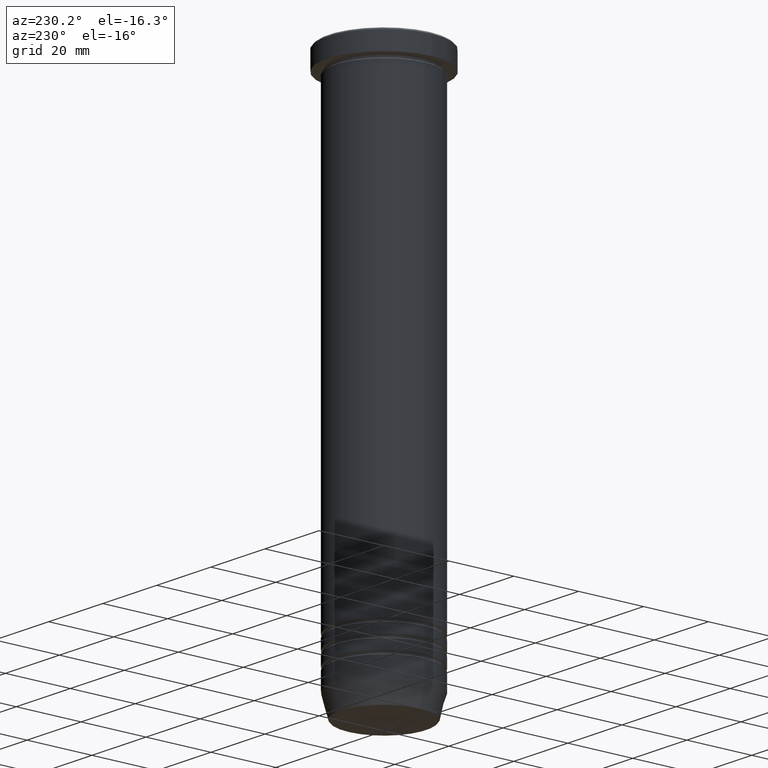
[diagram: clean part render]
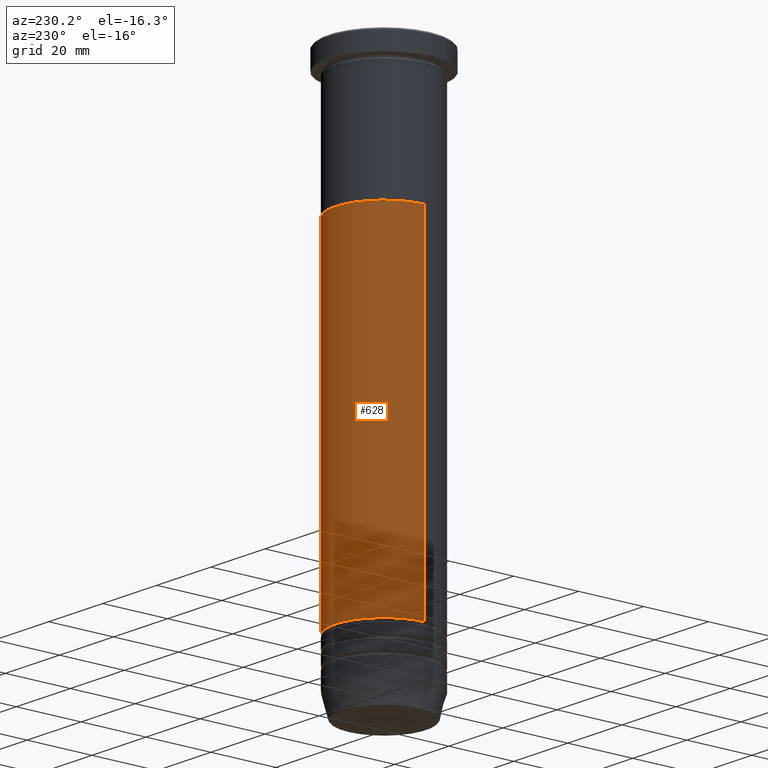
[diagram: same view with one face highlighted and labeled with its STEP entity id]
A machine part, auxiliary view. The second image highlights one B-rep face of the part: STEP entity #628.
In plain terms, the highlighted cylindrical surface (partial cylindrical patch) has radius 15 mm, axis along (-0, -0, 1).
Its self-contained STEP definition (entity closure, byte-faithful):
#22 = CIRCLE ( 'NONE', #635, 14.99999999999999112 ) ;
#56 = CARTESIAN_POINT ( 'NONE',  ( 14.99999999999999112, 0.000000000000000000, -145.0000000000000000 ) ) ;
#64 = EDGE_CURVE ( 'NONE', #1089, #1016, #1096, .T. ) ;
#67 = CIRCLE ( 'NONE', #617, 15.00000000000000000 ) ;
#111 = VECTOR ( 'NONE', #391, 1000.000000000000000 ) ;
#117 = CYLINDRICAL_SURFACE ( 'NONE', #1140, 14.99999999999999645 ) ;
#118 = VERTEX_POINT ( 'NONE', #1001 ) ;
#123 = LINE ( 'NONE', #1133, #207 ) ;
#171 = EDGE_CURVE ( 'NONE', #1016, #118, #67, .T. ) ;
#207 = VECTOR ( 'NONE', #591, 1000.000000000000000 ) ;
#261 = CARTESIAN_POINT ( 'NONE',  ( 0.000000000000000000, 0.000000000000000000, -41.99999999999999289 ) ) ;
#271 = CARTESIAN_POINT ( 'NONE',  ( 0.000000000000000000, 0.000000000000000000, -145.0000000000000000 ) ) ;
#279 = EDGE_CURVE ( 'NONE', #1089, #855, #22, .T. ) ;
#306 = CARTESIAN_POINT ( 'NONE',  ( 0.000000000000000000, 0.000000000000000000, 0.000000000000000000 ) ) ;
#311 = CARTESIAN_POINT ( 'NONE',  ( 14.99999999999999645, 0.000000000000000000, 0.000000000000000000 ) ) ;
#336 = DIRECTION ( 'NONE',  ( 1.000000000000000000, 0.000000000000000000, 0.000000000000000000 ) ) ;
#391 = DIRECTION ( 'NONE',  ( -0.000000000000000000, -0.000000000000000000, 1.000000000000000000 ) ) ;
#467 = EDGE_LOOP ( 'NONE', ( #946, #1080, #473, #940 ) ) ;
#473 = ORIENTED_EDGE ( 'NONE', *, *, #171, .F. ) ;
#500 = FACE_OUTER_BOUND ( 'NONE', #467, .T. ) ;
#504 = DIRECTION ( 'NONE',  ( 1.000000000000000000, 0.000000000000000000, 0.000000000000000000 ) ) ;
#591 = DIRECTION ( 'NONE',  ( -0.000000000000000000, -0.000000000000000000, 1.000000000000000000 ) ) ;
#594 = CARTESIAN_POINT ( 'NONE',  ( -14.99999999999999112, 1.836970198721028800E-15, -145.0000000000000000 ) ) ;
#617 = AXIS2_PLACEMENT_3D ( 'NONE', #261, #1064, #504 ) ;
#623 = DIRECTION ( 'NONE',  ( -0.000000000000000000, -0.000000000000000000, 1.000000000000000000 ) ) ;
#628 = ADVANCED_FACE ( 'NONE', ( #500 ), #117, .T. ) ;
#635 = AXIS2_PLACEMENT_3D ( 'NONE', #271, #623, #981 ) ;
#658 = DIRECTION ( 'NONE',  ( -0.000000000000000000, -0.000000000000000000, 1.000000000000000000 ) ) ;
#706 = EDGE_CURVE ( 'NONE', #855, #118, #123, .T. ) ;
#855 = VERTEX_POINT ( 'NONE', #594 ) ;
#917 = CARTESIAN_POINT ( 'NONE',  ( 15.00000000000000000, 0.000000000000000000, -41.99999999999999289 ) ) ;
#940 = ORIENTED_EDGE ( 'NONE', *, *, #64, .F. ) ;
#946 = ORIENTED_EDGE ( 'NONE', *, *, #279, .T. ) ;
#981 = DIRECTION ( 'NONE',  ( 1.000000000000000000, 0.000000000000000000, 0.000000000000000000 ) ) ;
#1001 = CARTESIAN_POINT ( 'NONE',  ( -15.00000000000000000, 1.836970198721029589E-15, -41.99999999999999289 ) ) ;
#1016 = VERTEX_POINT ( 'NONE', #917 ) ;
#1064 = DIRECTION ( 'NONE',  ( -0.000000000000000000, -0.000000000000000000, 1.000000000000000000 ) ) ;
#1080 = ORIENTED_EDGE ( 'NONE', *, *, #706, .T. ) ;
#1089 = VERTEX_POINT ( 'NONE', #56 ) ;
#1096 = LINE ( 'NONE', #311, #111 ) ;
#1133 = CARTESIAN_POINT ( 'NONE',  ( -14.99999999999999645, 1.836970198721029194E-15, 0.000000000000000000 ) ) ;
#1140 = AXIS2_PLACEMENT_3D ( 'NONE', #306, #658, #336 ) ;